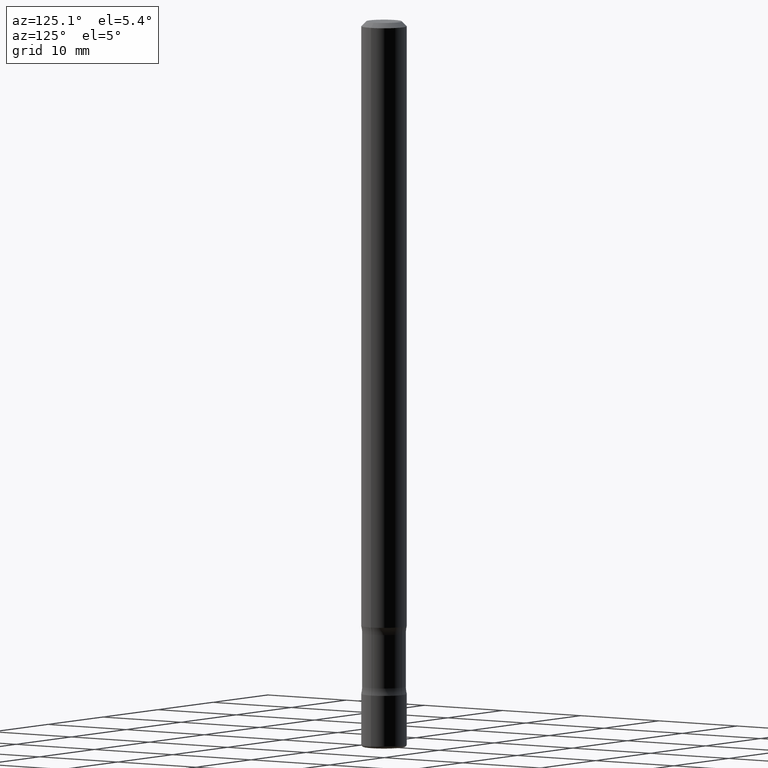
[diagram: clean part render]
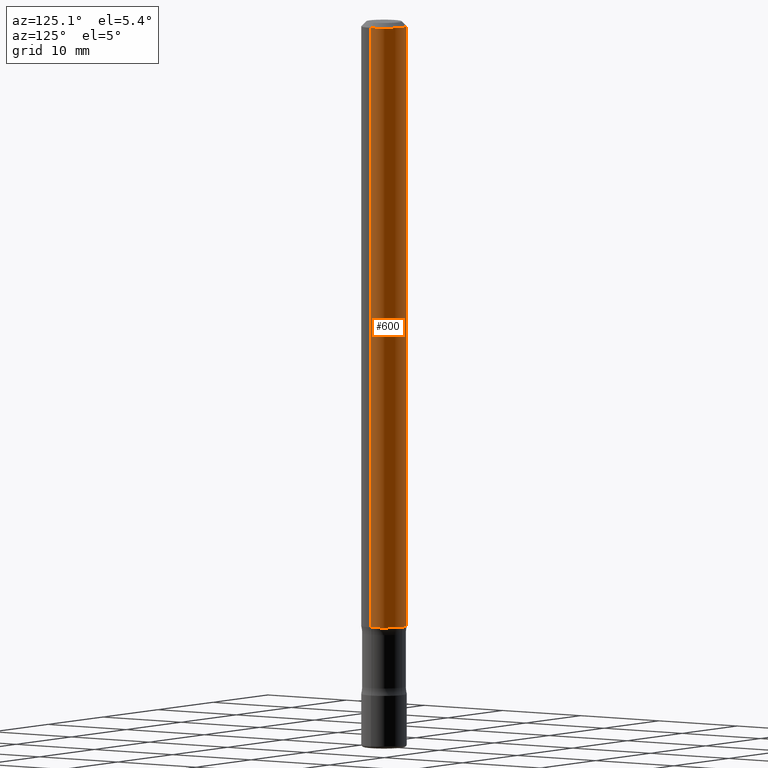
[diagram: same view with one face highlighted and labeled with its STEP entity id]
A machine part, auxiliary view. The second image highlights one B-rep face of the part: STEP entity #600.
In plain terms, the highlighted cylindrical surface (edge-blend (fillet) strip) has radius 2.3812 mm, axis along (-0, 0, 1).
Its self-contained STEP definition (entity closure, byte-faithful):
#39 = VERTEX_POINT ( 'NONE', #681 ) ;
#41 = VERTEX_POINT ( 'NONE', #120 ) ;
#50 = EDGE_CURVE ( 'NONE', #662, #345, #669, .T. ) ;
#68 = EDGE_CURVE ( 'NONE', #41, #39, #570, .T. ) ;
#103 = EDGE_LOOP ( 'NONE', ( #640, #658, #367, #113 ) ) ;
#106 = DIRECTION ( 'NONE',  ( 1.000000000000000000, -6.982962677686267499E-15, 0.000000000000000000 ) ) ;
#109 = VECTOR ( 'NONE', #307, 39.37007874015748143 ) ;
#113 = ORIENTED_EDGE ( 'NONE', *, *, #549, .F. ) ;
#115 = DIRECTION ( 'NONE',  ( -2.445468806185136597E-29, 3.491481338843145583E-15, 1.000000000000000000 ) ) ;
#120 = CARTESIAN_POINT ( 'NONE',  ( 0.09374999999999968081, -7.130013140679418184E-16, -0.02000000000000001776 ) ) ;
#126 = VECTOR ( 'NONE', #365, 39.37007874015748143 ) ;
#136 = CARTESIAN_POINT ( 'NONE',  ( -0.09374999999999984734, 6.661338147750928396E-16, -4.611501647113966288E-30 ) ) ;
#188 = AXIS2_PLACEMENT_3D ( 'NONE', #556, #616, #106 ) ;
#221 = CARTESIAN_POINT ( 'NONE',  ( 0.000000000000000000, 0.000000000000000000, 0.000000000000000000 ) ) ;
#233 = CARTESIAN_POINT ( 'NONE',  ( 6.113672015462842613E-29, -8.728703347107864943E-15, -2.500000000000000000 ) ) ;
#240 = DIRECTION ( 'NONE',  ( 1.000000000000000000, -6.982962677686266711E-15, 4.876176775795936353E-29 ) ) ;
#304 = EDGE_CURVE ( 'NONE', #345, #39, #381, .T. ) ;
#307 = DIRECTION ( 'NONE',  ( -2.445468806185136877E-29, 3.491481338843145188E-15, 1.000000000000000000 ) ) ;
#315 = LINE ( 'NONE', #516, #126 ) ;
#345 = VERTEX_POINT ( 'NONE', #376 ) ;
#365 = DIRECTION ( 'NONE',  ( -2.445468806185136877E-29, 3.491481338843145188E-15, 1.000000000000000000 ) ) ;
#367 = ORIENTED_EDGE ( 'NONE', *, *, #68, .F. ) ;
#376 = CARTESIAN_POINT ( 'NONE',  ( -0.09375000000000001388, -3.733132672167263096E-15, -2.500000000000000000 ) ) ;
#381 = LINE ( 'NONE', #136, #109 ) ;
#447 = AXIS2_PLACEMENT_3D ( 'NONE', #233, #115, #728 ) ;
#484 = FACE_OUTER_BOUND ( 'NONE', #103, .T. ) ;
#494 = DIRECTION ( 'NONE',  ( -2.445468806185136597E-29, 3.491481338843145583E-15, 1.000000000000000000 ) ) ;
#516 = CARTESIAN_POINT ( 'NONE',  ( 0.09374999999999984734, -6.546527510330864194E-16, 4.571415727308682799E-30 ) ) ;
#549 = EDGE_CURVE ( 'NONE', #662, #41, #315, .T. ) ;
#556 = CARTESIAN_POINT ( 'NONE',  ( 4.890937612370276662E-31, -6.982962677686296539E-17, -0.02000000000000001776 ) ) ;
#564 = CARTESIAN_POINT ( 'NONE',  ( 0.09375000000000001388, -9.383356098140953236E-15, -2.500000000000000000 ) ) ;
#570 = CIRCLE ( 'NONE', #188, 0.09374999999999968081 ) ;
#600 = ADVANCED_FACE ( 'NONE', ( #484 ), #777, .T. ) ;
#616 = DIRECTION ( 'NONE',  ( -2.445468806185136597E-29, 3.491481338843145583E-15, 1.000000000000000000 ) ) ;
#621 = AXIS2_PLACEMENT_3D ( 'NONE', #221, #494, #240 ) ;
#640 = ORIENTED_EDGE ( 'NONE', *, *, #50, .T. ) ;
#658 = ORIENTED_EDGE ( 'NONE', *, *, #304, .T. ) ;
#662 = VERTEX_POINT ( 'NONE', #564 ) ;
#669 = CIRCLE ( 'NONE', #447, 0.09375000000000001388 ) ;
#681 = CARTESIAN_POINT ( 'NONE',  ( -0.09374999999999968081, 5.848231242562223324E-16, -0.02000000000000001776 ) ) ;
#728 = DIRECTION ( 'NONE',  ( 1.000000000000000000, -6.982962677686272233E-15, 0.000000000000000000 ) ) ;
#777 = CYLINDRICAL_SURFACE ( 'NONE', #621, 0.09374999999999984734 ) ;